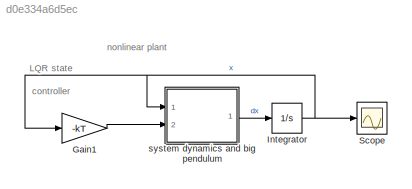
MODEL slx_d0e334a6d5ec
KIND model
CONFIG AbsTol = auto
CONFIG EnableMultiTasking = off
CONFIG FixedStep = auto
CONFIG MaxStep = 1e-3
CONFIG MinStep = auto
CONFIG RelTol = 1e-3
CONFIG SampleTimeConstraint = Unconstrained
CONFIG Solver = VariableStepAuto
CONFIG SolverName = VariableStepAuto
CONFIG StartTime = 0.0
CONFIG StopTime = 3
BLOCK [Gain] Gain1
  Gain = -kT
  Multiplication = Matrix(K*u)
  OutDataTypeStr = Inherit: Inherit via internal rule
  ParamDataTypeStr = Inherit: Inherit via internal rule
  SaturateOnIntegerOverflow = off
BLOCK [Integrator] Integrator
  InitialCondition = x0
  Ports = [1, 1]
BLOCK [Scope] Scope
  Floating = off
  NumInputPorts = 1
  Ports = [1]
  ScopeSpecificationString = Simulink.scopes.TimeScopeBlockCfg('CurrentConfiguration', extmgr.ConfigurationSet(extmgr.Configuration('Core','General UI',true),extmgr.Configuration('Core','Source UI',true),extmgr.Configuration('Sources','WiredSimulink',true,'DataLoggingVariableName','lqr_simdata','DataLogging',true,'DataLoggingSaveFormat','StructureWithTime'),extmgr.Configuration('Visuals','Time Domain',true,'SerializedDisplays...<+1469ch>
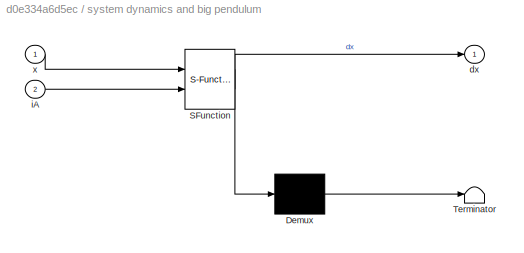
BLOCK [SubSystem] system dynamics and big pendulum
  ErrorFcn = Stateflow.Translate.translate
  PermitHierarchicalResolution = ExplicitOnly
  Ports = [2, 1]
  RequestExecContextInheritance = off
  SFBlockType = MATLAB Function
  TreatAsAtomicUnit = on
BLOCK [Demux] system dynamics and big pendulum/ Demux 
  Outputs = 1
  Ports = [1, 1]
BLOCK [S-Function] system dynamics and big pendulum/ SFunction 
  EnableBusSupport = on
  FunctionName = sf_sfun
  Parameters = all_params,g
  PortCounts = [2 2]
  Ports = [2, 2]
  SFcnIsStateOwnerBlock = off
  SFunctionDeploymentMode = off
  Tag = Stateflow S-Function OAC_LA_Ass1_Task3_full_model_lqr_controller 2
BLOCK [Terminator] system dynamics and big pendulum/ Terminator 
BLOCK [Outport] system dynamics and big pendulum/dx
  IconDisplay = Port number
BLOCK [Inport] system dynamics and big pendulum/iA
  IconDisplay = Port number
  Port = 2
BLOCK [Inport] system dynamics and big pendulum/x
  IconDisplay = Port number
ANNOTATION (root): LQR state controller
ANNOTATION (root): nonlinear plant
LINE Gain1:1 -> system dynamics and big pendulum:2
NET Integrator:1 -> Gain1:1, Scope:1, system dynamics and big pendulum:1
LINE system dynamics and big pendulum:1 -> Integrator:1
note: NET lines group one-source signal fan-out (src -> all destinations, sorted); 1:1 wires keep LINE
CHART system dynamics and
big pendulum states=1 transitions=1
  STATE_LABEL 'eML_blk_kernel()'
  STATE_LABEL 'SCRIPT:\nfunction dx  = fcn(x,iA,all_params,g)\n    \n    l = all_params(1);\n    ms = all_params(2);\n    mw = all_params(3);\n    V = all_params(4);\n    k1 = all_params(5);\n    \n    x_W = x(1);\n    phi = x(2);\n    v_W = x(3);\n    omega = x(4);\n    \n    F = V*iA - k1*v_W;\n\n    dx_W = v_W;\n    dphi = omega;\n    dv_W = 1/( mw + ms*(1-(cos(phi))^2) ) * ( F + ms*l*omega^2*sin(phi) ...\n        - ms*g*sin(ph...<+209ch>'
